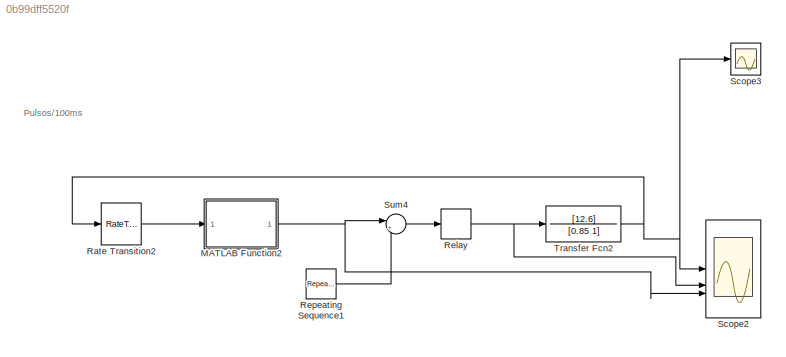
MODEL slx_0b99dff5520f
KIND model
CONFIG AbsTol = auto
CONFIG EnableMultiTasking = off
CONFIG FixedStep = (1/10000)/100
CONFIG MaxStep = auto
CONFIG MinStep = auto
CONFIG RelTol = 1e-3
CONFIG SampleTimeConstraint = Unconstrained
CONFIG SolverName = FixedStepAuto
CONFIG StartTime = 0.0
CONFIG StopTime = 12
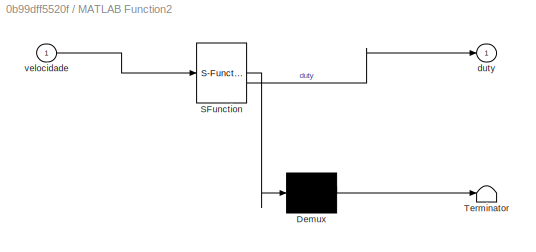
BLOCK [SubSystem] MATLAB Function2
  ErrorFcn = Stateflow.Translate.translate
  LibrarySourceBlock = simulink/User-Defined\nFunctions/MATLAB Function
  PermitHierarchicalResolution = ExplicitOnly
  SFBlockType = MATLAB Function
  TreatAsAtomicUnit = on
BLOCK [Demux] MATLAB Function2/ Demux 
  Outputs = 1
BLOCK [S-Function] MATLAB Function2/ SFunction 
  EnableBusSupport = on
  FunctionName = sf_sfun
  PortCounts = [1 2]
  SFcnIsStateOwnerBlock = off
  SFunctionDeploymentMode = off
  Tag = Stateflow S-Function 3
BLOCK [Terminator] MATLAB Function2/ Terminator 
BLOCK [Outport] MATLAB Function2/duty
BLOCK [Inport] MATLAB Function2/velocidade
BLOCK [RateTransition] Rate Transition2
  OutPortSampleTime = 0.1
BLOCK [Relay] Relay
  OnOutputValue = 5
BLOCK [Reference] Repeating Sequence1  REF=simulink/Sources/Repeating
Sequence
  SourceBlock = simulink/Sources/Repeating\nSequence
  SourceType = Repeating table
BLOCK [Scope] Scope2
  Floating = off
  NumInputPorts = 3
  ScopeSpecificationString = Simulink.scopes.TimeScopeBlockCfg('CurrentConfiguration', extmgr.ConfigurationSet(extmgr.Configuration('Core','General UI',true),extmgr.Configuration('Core','Source UI',true),extmgr.Configuration('Sources','WiredSimulink',true,'DataLoggingVariableName','ScopeData1'),extmgr.Configuration('Visuals','Time Domain',true,'SerializedDisplays',{struct('MinYLimReal','-5.03715','MaxYLimReal','45.33432','YLa...<+2735ch>
BLOCK [Scope] Scope3
  Floating = off
  NumInputPorts = 1
  ScopeSpecificationString = Simulink.scopes.TimeScopeBlockCfg('CurrentConfiguration', extmgr.ConfigurationSet(extmgr.Configuration('Core','General UI',true),extmgr.Configuration('Core','Source UI',true),extmgr.Configuration('Sources','WiredSimulink',true,'DataLoggingVariableName','ScopeData1'),extmgr.Configuration('Visuals','Time Domain',true,'SerializedDisplays',{struct('MinYLimReal','-5.04184','MaxYLimReal','45.37659','YLa...<+1430ch>
BLOCK [Sum] Sum4
  Inputs = |+-
BLOCK [TransferFcn] Transfer Fcn2
  Denominator = [0.85 1]
  Numerator = [12.6]
ANNOTATION (root): Pulsos/100ms
NET MATLAB Function2:1 -> Scope2:3, Sum4:1
LINE Rate Transition2:1 -> MATLAB Function2:1
NET Relay:1 -> Scope2:2, Transfer Fcn2:1
LINE Repeating Sequence1:1 -> Sum4:2
LINE Sum4:1 -> Relay:1
NET Transfer Fcn2:1 -> Rate Transition2:1, Scope2:1, Scope3:1
note: NET lines group one-source signal fan-out (src -> all destinations, sorted); 1:1 wires keep LINE
CHART MATLAB Function2 states=1 transitions=1
  STATE_LABEL 'eML_blk_kernel()'
  STATE_LABEL 'SCRIPT:\nfunction duty = fcn(velocidade)\n\npersistent ek_1 ek_2 uk_1;\n\nif( isempty(ek_1) ) ek_1=0; end\nif( isempty(ek_2) ) ek_2=0; end\nif( isempty(uk_1) ) uk_1=0; end\n\n% Erro\nvref=40\nek = vref-velocidade\n\n\n% Controle\n% PI\nuk = uk_1 + 0.056*(ek - 0.85*ek_1)\n% PID\n%uk = uk_1 + 0.05*(ek - 1.6*ek_1 + 0.68*ek_2)\n\n\n% Atraso das variáveis\nuk_1=uk\nek_2=ek_1\nek_1=ek\n\nduty = uk*799/5;\n'
CHART  states=0 transitions=0
